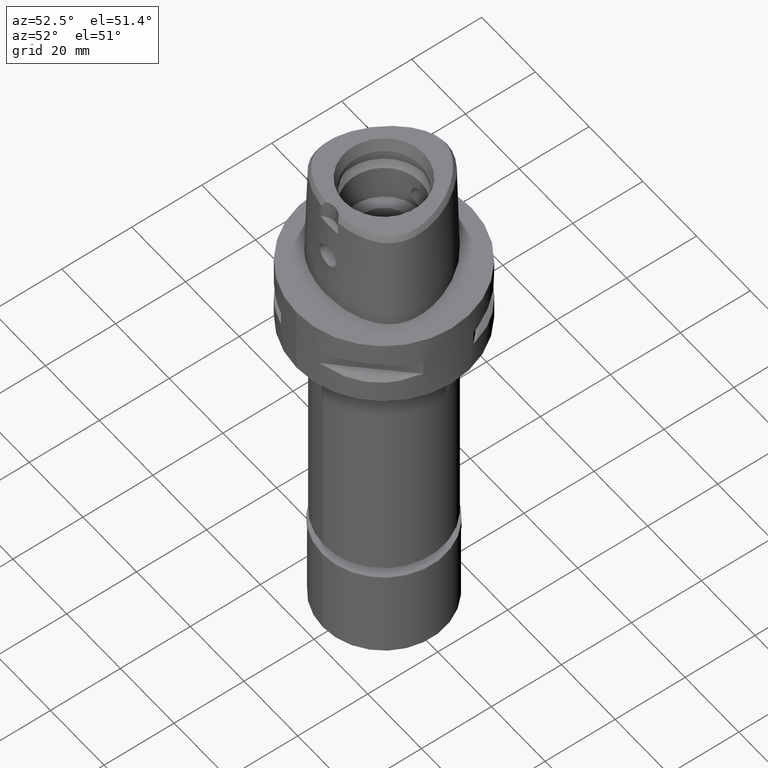
[diagram: clean part render]
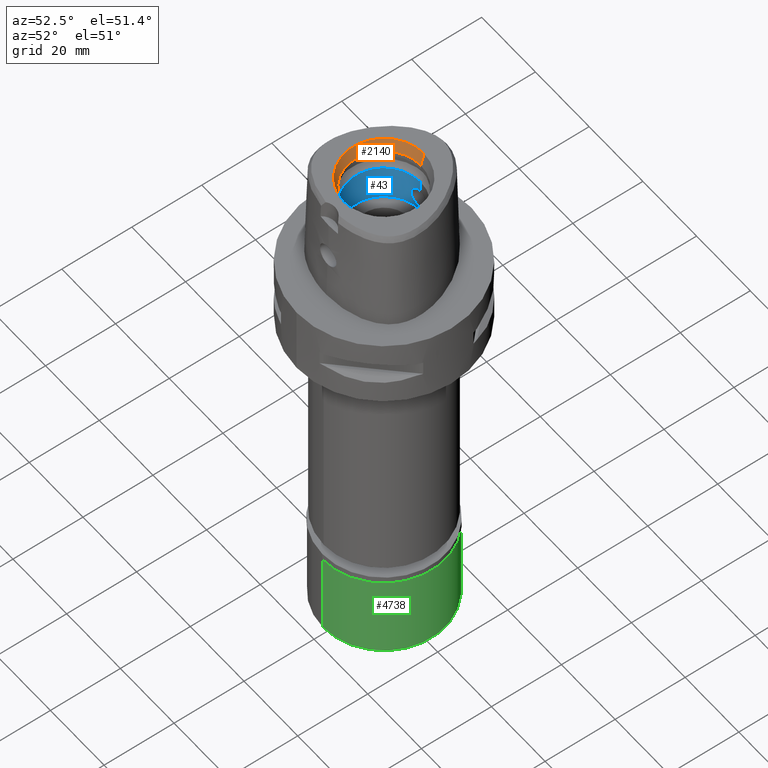
[diagram: same view with three faces highlighted in distinct colors, each labeled with its STEP entity id]
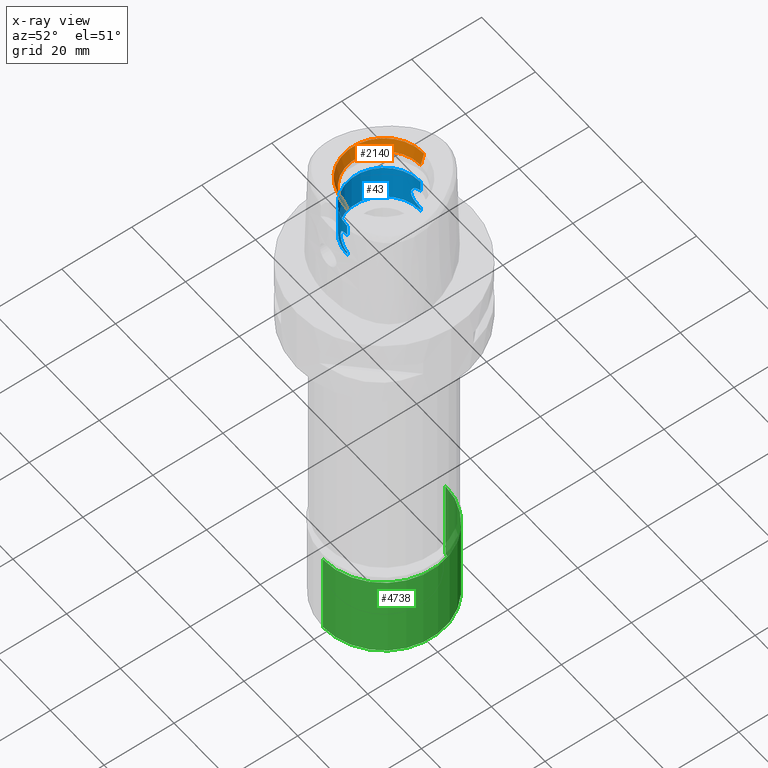
[diagram: x-ray of the same camera — body ghosted, the three highlighted faces saturated]
A machine part, auxiliary view with three faces highlighted in distinct colors.
The next image is the same camera in x-ray (body ghosted, the three faces saturated) — at least one of them is partly hidden behind the body in this view.
Their STEP definitions:

[orange] entity #2140 — the highlighted conical surface has half-angle 15 deg.
#77 = ORIENTED_EDGE ( 'NONE', *, *, #3396, .F. ) ;
#638 = EDGE_CURVE ( 'NONE', #1384, #2234, #2397, .T. ) ;
#1030 = VERTEX_POINT ( 'NONE', #1131 ) ;
#1089 = DIRECTION ( 'NONE',  ( 0.0000000000000000000, 1.000000000000000000, 0.0000000000000000000 ) ) ;
#1131 = CARTESIAN_POINT ( 'NONE',  ( 0.0000000000000000000, -10.50000000000000000, 26.50000000000000000 ) ) ;
#1154 = VECTOR ( 'NONE', #4639, 1000.000000000000114 ) ;
#1163 = CARTESIAN_POINT ( 'NONE',  ( 0.0000000000000000000, 11.43782217350000074, 30.00000000000000000 ) ) ;
#1277 = ORIENTED_EDGE ( 'NONE', *, *, #2511, .T. ) ;
#1384 = VERTEX_POINT ( 'NONE', #1163 ) ;
#1432 = CIRCLE ( 'NONE', #2379, 10.50000000000000000 ) ;
#1469 = CARTESIAN_POINT ( 'NONE',  ( 0.0000000000000000000, -10.50000000000000000, 26.50000000000000000 ) ) ;
#1679 = CARTESIAN_POINT ( 'NONE',  ( 0.0000000000000000000, -11.43782217350000074, 30.00000000000000000 ) ) ;
#1831 = CARTESIAN_POINT ( 'NONE',  ( 0.0000000000000000000, 1.570609519905999910E-14, 30.00000000000000000 ) ) ;
#1838 = VECTOR ( 'NONE', #2600, 1000.000000000000114 ) ;
#2030 = FACE_OUTER_BOUND ( 'NONE', #2195, .T. ) ;
#2117 = DIRECTION ( 'NONE',  ( 0.0000000000000000000, 1.000000000000000000, 0.0000000000000000000 ) ) ;
#2140 = ADVANCED_FACE ( 'NONE', ( #2030 ), #2976, .F. ) ;
#2195 = EDGE_LOOP ( 'NONE', ( #2960, #77, #1277, #2817 ) ) ;
#2222 = LINE ( 'NONE', #1469, #1838 ) ;
#2234 = VERTEX_POINT ( 'NONE', #1679 ) ;
#2379 = AXIS2_PLACEMENT_3D ( 'NONE', #4552, #2769, #3084 ) ;
#2397 = CIRCLE ( 'NONE', #3349, 11.43782217350000074 ) ;
#2511 = EDGE_CURVE ( 'NONE', #4541, #1384, #4666, .T. ) ;
#2600 = DIRECTION ( 'NONE',  ( 0.0000000000000000000, -0.2588190451023999472, 0.9659258262891006197 ) ) ;
#2769 = DIRECTION ( 'NONE',  ( 0.0000000000000000000, 0.0000000000000000000, 1.000000000000000000 ) ) ;
#2817 = ORIENTED_EDGE ( 'NONE', *, *, #638, .T. ) ;
#2960 = ORIENTED_EDGE ( 'NONE', *, *, #3667, .F. ) ;
#2976 = CONICAL_SURFACE ( 'NONE', #4289, 10.96891108674999948, 0.2617993877991000029 ) ;
#3084 = DIRECTION ( 'NONE',  ( 0.0000000000000000000, 1.000000000000000000, 0.0000000000000000000 ) ) ;
#3290 = CARTESIAN_POINT ( 'NONE',  ( 0.0000000000000000000, 10.50000000000000000, 26.50000000000000000 ) ) ;
#3349 = AXIS2_PLACEMENT_3D ( 'NONE', #1831, #4783, #1089 ) ;
#3396 = EDGE_CURVE ( 'NONE', #4541, #1030, #1432, .T. ) ;
#3667 = EDGE_CURVE ( 'NONE', #1030, #2234, #2222, .T. ) ;
#3887 = CARTESIAN_POINT ( 'NONE',  ( 0.0000000000000000000, 10.50000000000000000, 26.50000000000000000 ) ) ;
#4289 = AXIS2_PLACEMENT_3D ( 'NONE', #4654, #4359, #2117 ) ;
#4359 = DIRECTION ( 'NONE',  ( 0.0000000000000000000, 0.0000000000000000000, 1.000000000000000000 ) ) ;
#4541 = VERTEX_POINT ( 'NONE', #3290 ) ;
#4552 = CARTESIAN_POINT ( 'NONE',  ( 0.0000000000000000000, 1.570609519905999910E-14, 26.50000000000000000 ) ) ;
#4639 = DIRECTION ( 'NONE',  ( 0.0000000000000000000, 0.2588190451023999472, 0.9659258262891006197 ) ) ;
#4654 = CARTESIAN_POINT ( 'NONE',  ( 0.0000000000000000000, 1.570609519905999910E-14, 28.25000000000000000 ) ) ;
#4666 = LINE ( 'NONE', #3887, #1154 ) ;
#4783 = DIRECTION ( 'NONE',  ( 0.0000000000000000000, 0.0000000000000000000, 1.000000000000000000 ) ) ;

[blue] entity #43 — the highlighted cylindrical surface (partial cylindrical patch) has radius 10.5 mm, axis along (0, 0, -1).
#1 = CARTESIAN_POINT ( 'NONE',  ( -1.236970991457524205, -10.42717214455168673, 11.21059854084800378 ) ) ;
#7 = CARTESIAN_POINT ( 'NONE',  ( -1.989380834266105236, -10.31000558558483782, 16.31412456803518651 ) ) ;
#10 = CARTESIAN_POINT ( 'NONE',  ( -2.422120140329977023, 10.21699611243725059, 15.85428600920510789 ) ) ;
#35 = CARTESIAN_POINT ( 'NONE',  ( -2.810150766206493955, 10.11706327608431444, 15.18561677981521463 ) ) ;
#43 = ADVANCED_FACE ( 'NONE', ( #150 ), #1254, .F. ) ;
#52 = EDGE_LOOP ( 'NONE', ( #1263, #3153, #2940, #4740, #84, #4463, #1803, #2835 ) ) ;
#60 = CARTESIAN_POINT ( 'NONE',  ( -2.978127891128233173, 10.06912725568705191, 13.33449090258048031 ) ) ;
#64 = VECTOR ( 'NONE', #2957, 1000.000000000000000 ) ;
#75 = CARTESIAN_POINT ( 'NONE',  ( -2.069542859304600579, -10.29403964594939325, 11.75921177303411191 ) ) ;
#83 = CARTESIAN_POINT ( 'NONE',  ( -1.707640360675909186, 10.36022131060034823, 11.47285354451636330 ) ) ;
#84 = ORIENTED_EDGE ( 'NONE', *, *, #442, .T. ) ;
#98 = CARTESIAN_POINT ( 'NONE',  ( -0.7659688420383309326, -10.47222443652091428, 11.04602031585923783 ) ) ;
#106 = CARTESIAN_POINT ( 'NONE',  ( -2.528954909622000979, 10.19087722666582430, 15.70496063387551189 ) ) ;
#129 = CARTESIAN_POINT ( 'NONE',  ( -1.210517423897341072, 10.42987825673995594, 11.20048454624511791 ) ) ;
#150 = FACE_OUTER_BOUND ( 'NONE', #52, .T. ) ;
#160 = CARTESIAN_POINT ( 'NONE',  ( -2.500941927104697537, -10.19782552341570536, 12.25405656687691369 ) ) ;
#162 = CARTESIAN_POINT ( 'NONE',  ( 0.0000000000000000000, -10.50000000000000000, 17.05000000000000071 ) ) ;
#182 = CARTESIAN_POINT ( 'NONE',  ( -2.888905041932110951, -10.09491623349292588, 14.98047557974274646 ) ) ;
#201 = CARTESIAN_POINT ( 'NONE',  ( -1.386859004519744420, 10.40801138036379214, 11.28306995356800080 ) ) ;
#205 = CARTESIAN_POINT ( 'NONE',  ( -2.683279171142028741, -10.15143556569935868, 15.45085199004000032 ) ) ;
#241 = DIRECTION ( 'NONE',  ( 0.0000000000000000000, 0.0000000000000000000, 1.000000000000000000 ) ) ;
#261 = LINE ( 'NONE', #753, #1849 ) ;
#324 = CARTESIAN_POINT ( 'NONE',  ( -2.599211988427735154, -10.17322507370061224, 15.59619274367446629 ) ) ;
#327 = CARTESIAN_POINT ( 'NONE',  ( -1.669323678374943221, 10.36644748067065613, 16.55262679574853735 ) ) ;
#375 = CARTESIAN_POINT ( 'NONE',  ( -2.829287990917263684, 10.11169813602231571, 12.86080909624539892 ) ) ;
#389 = CARTESIAN_POINT ( 'NONE',  ( -1.141745633105092805, -10.43768060441339074, 11.17174126026638348 ) ) ;
#397 = CARTESIAN_POINT ( 'NONE',  ( -2.683191945264891576, 10.15145846410230668, 12.54898677824548869 ) ) ;
#421 = CARTESIAN_POINT ( 'NONE',  ( -2.517823525413681818, 10.19364202501179406, 15.72138897898658172 ) ) ;
#439 = CARTESIAN_POINT ( 'NONE',  ( -1.716756171786230301, 10.35871365131697175, 11.47903138842630177 ) ) ;
#442 = EDGE_CURVE ( 'NONE', #4724, #4509, #261, .T. ) ;
#460 = CARTESIAN_POINT ( 'NONE',  ( -2.078038709624342228, 10.29276064310931460, 11.76344414177673059 ) ) ;
#510 = CARTESIAN_POINT ( 'NONE',  ( -2.912216450231191800, -10.08825166008217522, 14.90777119494854830 ) ) ;
#519 = AXIS2_PLACEMENT_3D ( 'NONE', #2495, #1331, #574 ) ;
#532 = CARTESIAN_POINT ( 'NONE',  ( -2.772332365879737637, -10.12749896522380233, 12.72828723214494673 ) ) ;
#541 = DIRECTION ( 'NONE',  ( 0.0000000000000000000, 0.0000000000000000000, -1.000000000000000000 ) ) ;
#571 = CARTESIAN_POINT ( 'NONE',  ( -3.045674708761643590, -10.04867492672408424, 13.81104911491829057 ) ) ;
#574 = DIRECTION ( 'NONE',  ( 0.0000000000000000000, 1.000000000000000000, 0.0000000000000000000 ) ) ;
#601 = CARTESIAN_POINT ( 'NONE',  ( -2.648789121796822243, -10.16057521332143132, 12.48453188296662120 ) ) ;
#624 = CARTESIAN_POINT ( 'NONE',  ( -1.707002147117131052, -10.36032702960450003, 16.52757898179819307 ) ) ;
#628 = CARTESIAN_POINT ( 'NONE',  ( -1.658066331311180752, 10.36825423575106697, 16.55995334772511285 ) ) ;
#632 = CARTESIAN_POINT ( 'NONE',  ( 0.0000000000000000000, -10.50000000000000000, 20.40000000000000213 ) ) ;
#653 = CARTESIAN_POINT ( 'NONE',  ( -2.556129876256765687, -10.18410642273496691, 15.66394454908769163 ) ) ;
#678 = VERTEX_POINT ( 'NONE', #1409 ) ;
#698 = CARTESIAN_POINT ( 'NONE',  ( -1.237023317697302893, 10.42716572946013365, 16.78937845560923847 ) ) ;
#717 = CARTESIAN_POINT ( 'NONE',  ( -1.716858718820745366, -10.35869680157686368, 16.52089877280510777 ) ) ;
#719 = CARTESIAN_POINT ( 'NONE',  ( -2.741746217139191089, 10.13583857502459118, 15.33702988438338899 ) ) ;
#726 = EDGE_CURVE ( 'NONE', #2739, #4696, #4091, .T. ) ;
#745 = CARTESIAN_POINT ( 'NONE',  ( -2.801053957048247334, 10.11958658533686872, 15.20695120327819794 ) ) ;
#753 = CARTESIAN_POINT ( 'NONE',  ( 0.0000000000000000000, 10.50000000000000000, 17.05000000000000071 ) ) ;
#759 = CARTESIAN_POINT ( 'NONE',  ( -2.103232246197917821, -10.28719004434036322, 11.79111788134575001 ) ) ;
#767 = CARTESIAN_POINT ( 'NONE',  ( -1.276168536539535436, -10.42207014440570134, 16.77028671480228894 ) ) ;
#769 = CARTESIAN_POINT ( 'NONE',  ( -2.619413570529740554, 10.16804486729831325, 12.43735944304080654 ) ) ;
#790 = CARTESIAN_POINT ( 'NONE',  ( -2.787138307697480055, 10.12343696887290534, 15.23908121230954826 ) ) ;
#804 = CARTESIAN_POINT ( 'NONE',  ( -2.328134646588185142, -10.23900167388969074, 12.02706842540317389 ) ) ;
#815 = CARTESIAN_POINT ( 'NONE',  ( -2.552337097881177908, 10.18505770120703069, 12.33024350685578518 ) ) ;
#866 = CARTESIAN_POINT ( 'NONE',  ( -3.049996994654183613, -10.04726781904927080, 13.90736337047195903 ) ) ;
#880 = CARTESIAN_POINT ( 'NONE',  ( 0.0000000000000000000, 1.610410540878999754E-14, 31.50000000000000000 ) ) ;
#913 = DIRECTION ( 'NONE',  ( 0.0000000000000000000, 0.0000000000000000000, 1.000000000000000000 ) ) ;
#941 = CARTESIAN_POINT ( 'NONE',  ( -2.810086769267829965, -10.11707961411530832, 12.81423157179656691 ) ) ;
#966 = CARTESIAN_POINT ( 'NONE',  ( -2.813881467533069447, -10.11602472213331083, 12.82324819156600704 ) ) ;
#976 = CARTESIAN_POINT ( 'NONE',  ( 0.0000000000000000000, 10.50000000000000000, 10.00000000000000000 ) ) ;
#1023 = CARTESIAN_POINT ( 'NONE',  ( -2.036676823283890769, 10.30054757855959124, 16.27052250341585093 ) ) ;
#1045 = CARTESIAN_POINT ( 'NONE',  ( -1.833447488656553714, -10.33866307199009782, 16.43778404703753893 ) ) ;
#1074 = VERTEX_POINT ( 'NONE', #976 ) ;
#1094 = CARTESIAN_POINT ( 'NONE',  ( -2.501000044834685632, 10.19781072506407860, 15.74586022058195312 ) ) ;
#1117 = CARTESIAN_POINT ( 'NONE',  ( -2.512897179944678427, 10.19492768217998702, 12.27023766549895711 ) ) ;
#1134 = VERTEX_POINT ( 'NONE', #632 ) ;
#1136 = CARTESIAN_POINT ( 'NONE',  ( -1.930402385869702142, -10.32098582606490567, 11.63809759456460746 ) ) ;
#1148 = CARTESIAN_POINT ( 'NONE',  ( -1.833357280887933038, 10.33867894477191207, 11.56214807801467970 ) ) ;
#1175 = CARTESIAN_POINT ( 'NONE',  ( -2.465923181850918411, 10.20663968159883872, 12.20230114967458768 ) ) ;
#1186 = CARTESIAN_POINT ( 'NONE',  ( -1.601761070455504754, -10.37713886433959409, 11.40421660821091443 ) ) ;
#1198 = CARTESIAN_POINT ( 'NONE',  ( -1.706897019231228940, 10.36034420873473572, 11.47235002355032130 ) ) ;
#1254 = CYLINDRICAL_SURFACE ( 'NONE', #1535, 10.50000000000000000 ) ;
#1262 = CARTESIAN_POINT ( 'NONE',  ( -0.3776785909090182858, 10.49999999999999822, 10.94999999999999574 ) ) ;
#1263 = ORIENTED_EDGE ( 'NONE', *, *, #726, .F. ) ;
#1265 = CARTESIAN_POINT ( 'NONE',  ( -3.013859951456447916, -10.05850435149370625, 13.52139601645549050 ) ) ;
#1273 = DIRECTION ( 'NONE',  ( 0.0000000000000000000, -1.000000000000000000, 0.0000000000000000000 ) ) ;
#1307 = CARTESIAN_POINT ( 'NONE',  ( -3.050006005871280568, -10.04725307632644160, 14.18497625325586853 ) ) ;
#1328 = CARTESIAN_POINT ( 'NONE',  ( -2.531041662093029831, -10.19035908716451289, 12.29813872439738276 ) ) ;
#1330 = CARTESIAN_POINT ( 'NONE',  ( -0.3776993709982979786, -10.49999999999999822, 17.05000000000000782 ) ) ;
#1331 = DIRECTION ( 'NONE',  ( 0.0000000000000000000, 0.0000000000000000000, 1.000000000000000000 ) ) ;
#1409 = CARTESIAN_POINT ( 'NONE',  ( 0.0000000000000000000, 10.50000000000000000, 10.94999999999999929 ) ) ;
#1414 = CARTESIAN_POINT ( 'NONE',  ( -0.6689107934252116472, 10.47883584479355079, 16.97737400654057893 ) ) ;
#1485 = CARTESIAN_POINT ( 'NONE',  ( -2.525695295402958784, 10.19168723253692654, 15.70979240700941659 ) ) ;
#1506 = CARTESIAN_POINT ( 'NONE',  ( -0.9113028681997671354, -10.46032062360130865, 11.08888712985337044 ) ) ;
#1518 = CARTESIAN_POINT ( 'NONE',  ( -3.050002052846877199, 10.04726871909183750, 14.18506909345110500 ) ) ;
#1535 = AXIS2_PLACEMENT_3D ( 'NONE', #880, #541, #1273 ) ;
#1547 = CARTESIAN_POINT ( 'NONE',  ( -1.756850490860262237, 10.35198562929669563, 11.50668532013514422 ) ) ;
#1549 = VECTOR ( 'NONE', #913, 1000.000000000000000 ) ;
#1569 = CARTESIAN_POINT ( 'NONE',  ( -2.136195157994225102, 10.28040959572392232, 16.17703531785338100 ) ) ;
#1581 = CARTESIAN_POINT ( 'NONE',  ( -1.128342439728265090, -10.43913762318012850, 11.16636101740150799 ) ) ;
#1618 = CARTESIAN_POINT ( 'NONE',  ( -0.7784241814980361607, 10.47826785458433463, 11.02113059028888564 ) ) ;
#1661 = CARTESIAN_POINT ( 'NONE',  ( -2.791222475552965765, -10.12233257933232267, 15.23274991804428602 ) ) ;
#1682 = CARTESIAN_POINT ( 'NONE',  ( -1.243160183415216835, 10.42607389149278596, 11.21467312141658290 ) ) ;
#1739 = CARTESIAN_POINT ( 'NONE',  ( -0.7659989675978837731, 10.47222204629153453, 16.95397203600435887 ) ) ;
#1790 = CARTESIAN_POINT ( 'NONE',  ( -2.549842365819951162, -10.18568222999469164, 15.67356148465405141 ) ) ;
#1803 = ORIENTED_EDGE ( 'NONE', *, *, #2361, .F. ) ;
#1835 = CARTESIAN_POINT ( 'NONE',  ( -1.781761475892812197, -10.34769707631349789, 16.47553655425186392 ) ) ;
#1849 = VECTOR ( 'NONE', #4527, 1000.000000000000000 ) ;
#1854 = CARTESIAN_POINT ( 'NONE',  ( -1.068259254729759800, -10.44548219013554835, 11.14299424170537733 ) ) ;
#1863 = CARTESIAN_POINT ( 'NONE',  ( -2.556028951625586298, 10.18413196819813038, 12.33590042182879642 ) ) ;
#1876 = CARTESIAN_POINT ( 'NONE',  ( -1.740939741834752086, -10.35483279276972013, 11.49463136724422618 ) ) ;
#1886 = CARTESIAN_POINT ( 'NONE',  ( -1.989289688611299844, 10.31002308296286252, 11.68579728191736855 ) ) ;
#1907 = EDGE_CURVE ( 'NONE', #4509, #1134, #4752, .T. ) ;
#1909 = CARTESIAN_POINT ( 'NONE',  ( -1.870563960293808448, 10.33200406414448480, 11.59042173983723956 ) ) ;
#1925 = CARTESIAN_POINT ( 'NONE',  ( -0.9838954188418811420, -10.45387272493651665, 11.11226100473636436 ) ) ;
#1935 = CARTESIAN_POINT ( 'NONE',  ( -1.711272570631292123, 10.35962130366715428, 11.47531170282788615 ) ) ;
#1953 = CARTESIAN_POINT ( 'NONE',  ( -2.249112612356995555, 10.25680835906363519, 16.06494413070904059 ) ) ;
#2014 = CARTESIAN_POINT ( 'NONE',  ( -2.858200367380014040, -10.10358921940111010, 15.06506172780569486 ) ) ;
#2053 = CARTESIAN_POINT ( 'NONE',  ( -2.844281746712773007, -10.10749856698939730, 15.10123969460156701 ) ) ;
#2069 = LINE ( 'NONE', #3258, #1549 ) ;
#2074 = CARTESIAN_POINT ( 'NONE',  ( -2.834833065711951594, -10.11014754396551041, 15.12533950841325314 ) ) ;
#2121 = CARTESIAN_POINT ( 'NONE',  ( 0.0000000000000000000, -10.50000000000000000, 10.00000000000000000 ) ) ;
#2125 = CARTESIAN_POINT ( 'NONE',  ( -1.612831500871170887, -10.37582109268237396, 16.59102261434397718 ) ) ;
#2177 = CARTESIAN_POINT ( 'NONE',  ( -0.1867757862000055669, 10.50000000000000533, 17.05000000000000782 ) ) ;
#2193 = CARTESIAN_POINT ( 'NONE',  ( -2.078136855549447048, -10.29274103710466193, 16.23646593800194182 ) ) ;
#2196 = CARTESIAN_POINT ( 'NONE',  ( -1.641184631415794959, 10.37094890798138991, 16.57086096831054789 ) ) ;
#2217 = CARTESIAN_POINT ( 'NONE',  ( -1.707744634386802352, -10.36020426482496681, 16.52707599233059454 ) ) ;
#2219 = CARTESIAN_POINT ( 'NONE',  ( -2.834754633639801291, 10.11016863897445361, 12.87446293426835098 ) ) ;
#2243 = CARTESIAN_POINT ( 'NONE',  ( -2.449306409652422190, 10.21045509453157507, 15.81797153792606103 ) ) ;
#2259 = CARTESIAN_POINT ( 'NONE',  ( -2.125842786936849027, -10.28255069855148740, 11.81286979336259080 ) ) ;
#2268 = CARTESIAN_POINT ( 'NONE',  ( -2.069611831539440949, 10.29402588461528723, 16.24072455590262010 ) ) ;
#2282 = CARTESIAN_POINT ( 'NONE',  ( -1.500984064071866353, -10.39222349244441368, 11.34439425099851206 ) ) ;
#2291 = CARTESIAN_POINT ( 'NONE',  ( -3.032696740391326085, 10.05288360631074340, 14.38066037611959480 ) ) ;
#2307 = CARTESIAN_POINT ( 'NONE',  ( -2.422064481194326824, -10.21700983600882751, 12.14564131527684232 ) ) ;
#2321 = CARTESIAN_POINT ( 'NONE',  ( -2.813946852114310282, 10.11600798700472836, 15.17659545472322513 ) ) ;
#2329 = CARTESIAN_POINT ( 'NONE',  ( 0.0000000000000000000, 1.610410540878999754E-14, 10.00000000000000000 ) ) ;
#2361 = EDGE_CURVE ( 'NONE', #3159, #1134, #2069, .T. ) ;
#2373 = CARTESIAN_POINT ( 'NONE',  ( -2.954923799424067798, -10.07594839927475228, 14.76232415749415061 ) ) ;
#2383 = AXIS2_PLACEMENT_3D ( 'NONE', #2329, #3059, #4134 ) ;
#2421 = CARTESIAN_POINT ( 'NONE',  ( -2.800990899469157469, -10.11960264487857053, 12.79290249058781015 ) ) ;
#2474 = CARTESIAN_POINT ( 'NONE',  ( -1.601830449822953861, 10.37712825378677728, 16.59574060478407631 ) ) ;
#2495 = CARTESIAN_POINT ( 'NONE',  ( 0.0000000000000000000, 1.483659597167000164E-14, 20.40000000000000213 ) ) ;
#2498 = CARTESIAN_POINT ( 'NONE',  ( -1.930470013878575086, 10.32097337782365720, 16.36184715303361870 ) ) ;
#2544 = CARTESIAN_POINT ( 'NONE',  ( -1.729897229202746800, -10.35652570010797824, 16.51199141017097460 ) ) ;
#2546 = CARTESIAN_POINT ( 'NONE',  ( -1.141792211098828558, 10.43767525999571433, 16.82823993922313832 ) ) ;
#2573 = CARTESIAN_POINT ( 'NONE',  ( -0.3787264937952279920, 10.49470896119838592, 17.03279685116468656 ) ) ;
#2593 = CARTESIAN_POINT ( 'NONE',  ( -2.552438509331959260, -10.18503206892929391, 15.66960146825831579 ) ) ;
#2595 = CARTESIAN_POINT ( 'NONE',  ( -3.049997946777922575, 10.04725708844817333, 13.81486324953852041 ) ) ;
#2622 = CARTESIAN_POINT ( 'NONE',  ( -2.342882850095089786, 10.23560712946009232, 12.04464881773595941 ) ) ;
#2644 = CARTESIAN_POINT ( 'NONE',  ( -1.971929262909972724, -10.31316602881087086, 11.67249179958506389 ) ) ;
#2652 = CARTESIAN_POINT ( 'NONE',  ( -2.648844644341100896, 10.16056081194418503, 15.51537173427742644 ) ) ;
#2669 = CARTESIAN_POINT ( 'NONE',  ( -1.104322948832158202, -10.44170024957254306, 11.15691411144925560 ) ) ;
#2678 = CARTESIAN_POINT ( 'NONE',  ( -2.125912643791404655, 10.28253628167046507, 16.18706231037647569 ) ) ;
#2693 = CARTESIAN_POINT ( 'NONE',  ( -2.249050916138876755, -10.25682216957387638, 11.93498815947745939 ) ) ;
#2695 = CARTESIAN_POINT ( 'NONE',  ( 0.0000000000000000000, -10.50000000000000000, 10.00000000000000000 ) ) ;
#2705 = CARTESIAN_POINT ( 'NONE',  ( -2.266031942072059824, 10.25301885860398698, 11.95414413431464773 ) ) ;
#2739 = VERTEX_POINT ( 'NONE', #2695 ) ;
#2744 = CARTESIAN_POINT ( 'NONE',  ( -1.210594281083170909, -10.42986908659943346, 16.79948222309360162 ) ) ;
#2763 = CARTESIAN_POINT ( 'NONE',  ( -2.787076618230111880, -10.12345263663456052, 12.76078019898827698 ) ) ;
#2823 = CARTESIAN_POINT ( 'NONE',  ( -1.276087466830978956, 10.42208029483865772, 11.22967595726585266 ) ) ;
#2826 = CARTESIAN_POINT ( 'NONE',  ( -2.528894004391024186, -10.19089284583922073, 12.29494902973502235 ) ) ;
#2835 = ORIENTED_EDGE ( 'NONE', *, *, #3040, .F. ) ;
#2854 = CARTESIAN_POINT ( 'NONE',  ( -2.594811399191726764, -10.17450681222491049, 12.39322990856825868 ) ) ;
#2912 = CARTESIAN_POINT ( 'NONE',  ( -1.342364904572726392, -10.41382963364429060, 16.73914857691683977 ) ) ;
#2929 = CARTESIAN_POINT ( 'NONE',  ( 0.0000000000000000000, -10.50000000000000000, 10.94999999999999929 ) ) ;
#2940 = ORIENTED_EDGE ( 'NONE', *, *, #3479, .T. ) ;
#2941 = CARTESIAN_POINT ( 'NONE',  ( -1.068302726652214263, 10.44547749859901309, 16.85698952386767502 ) ) ;
#2948 = CARTESIAN_POINT ( 'NONE',  ( 0.0000000000000000000, -10.50000000000000000, 10.94999999999999929 ) ) ;
#2957 = DIRECTION ( 'NONE',  ( 0.0000000000000000000, 0.0000000000000000000, 1.000000000000000000 ) ) ;
#2982 = CARTESIAN_POINT ( 'NONE',  ( -2.574365583813414293, -10.17951923599857089, 15.63568231492182647 ) ) ;
#2984 = CARTESIAN_POINT ( 'NONE',  ( -2.531102836408900103, 10.19034339215896168, 15.70177029280958614 ) ) ;
#3003 = CARTESIAN_POINT ( 'NONE',  ( -2.899496666176276438, 10.09216377823652167, 14.96948400516765076 ) ) ;
#3031 = CARTESIAN_POINT ( 'NONE',  ( -3.033102383073896569, 10.05272244951220273, 13.62399160588141100 ) ) ;
#3040 = EDGE_CURVE ( 'NONE', #4696, #3159, #4297, .T. ) ;
#3047 = CARTESIAN_POINT ( 'NONE',  ( -0.6688848580203151650, -10.47883766592069676, 11.02262030736439513 ) ) ;
#3053 = CARTESIAN_POINT ( 'NONE',  ( -2.328192064093268954, 10.23898821852027652, 15.97286391451534548 ) ) ;
#3059 = DIRECTION ( 'NONE',  ( 0.0000000000000000000, 0.0000000000000000000, -1.000000000000000000 ) ) ;
#3066 = CARTESIAN_POINT ( 'NONE',  ( -1.669251865941063340, -10.36645889114649677, 11.44732624395232712 ) ) ;
#3073 = CARTESIAN_POINT ( 'NONE',  ( -2.594867977600434639, 10.17449200217675376, 15.60667852669412170 ) ) ;
#3121 = CARTESIAN_POINT ( 'NONE',  ( -2.517763885752869246, -10.19365728118864745, 12.27852380166261703 ) ) ;
#3140 = CARTESIAN_POINT ( 'NONE',  ( -2.741687925847800855, -10.13585340484663710, 12.66285088319215113 ) ) ;
#3142 = CARTESIAN_POINT ( 'NONE',  ( -1.179453040604665492, -10.43343659253780586, 16.81275016808202594 ) ) ;
#3153 = ORIENTED_EDGE ( 'NONE', *, *, #3894, .T. ) ;
#3159 = VERTEX_POINT ( 'NONE', #3885 ) ;
#3163 = CARTESIAN_POINT ( 'NONE',  ( -2.484615155407557285, -10.20184257487172630, 12.23093440950286492 ) ) ;
#3174 = VECTOR ( 'NONE', #241, 1000.000000000000000 ) ;
#3189 = CARTESIAN_POINT ( 'NONE',  ( -1.521583308926622635, 10.38951390832133370, 11.35469636213800193 ) ) ;
#3192 = CARTESIAN_POINT ( 'NONE',  ( -2.719716883149772890, -10.14177207452098806, 12.61862498506612695 ) ) ;
#3215 = CARTESIAN_POINT ( 'NONE',  ( -0.7784722812098756606, -10.47826500980826125, 16.97886144983464973 ) ) ;
#3241 = CARTESIAN_POINT ( 'NONE',  ( -1.568181816412384411, 10.38223931122219490, 16.61610008022359963 ) ) ;
#3257 = CARTESIAN_POINT ( 'NONE',  ( 0.0000000000000000000, 10.50000000000000000, 10.00000000000000000 ) ) ;
#3258 = CARTESIAN_POINT ( 'NONE',  ( 0.0000000000000000000, -10.50000000000000000, 17.05000000000000071 ) ) ;
#3266 = CARTESIAN_POINT ( 'NONE',  ( -1.521679074918116603, -10.38949990591960670, 16.64524884871136479 ) ) ;
#3271 = CARTESIAN_POINT ( 'NONE',  ( -1.128388588165296635, 10.43913238566114288, 16.83362060905057334 ) ) ;
#3294 = CARTESIAN_POINT ( 'NONE',  ( -2.266150310915595156, -10.25299273076200990, 16.04572614261367391 ) ) ;
#3343 = CARTESIAN_POINT ( 'NONE',  ( -1.676808555293912484, 10.36523801010305945, 16.54771143357410423 ) ) ;
#3366 = CARTESIAN_POINT ( 'NONE',  ( -2.549740208879109904, 10.18570802368205896, 12.32628287991787630 ) ) ;
#3376 = CARTESIAN_POINT ( 'NONE',  ( -1.811855294756858692, -10.34269454463855986, 11.54442964516321446 ) ) ;
#3389 = CARTESIAN_POINT ( 'NONE',  ( -2.574267007192601042, 10.17954435807561886, 12.36416254159420092 ) ) ;
#3411 = CARTESIAN_POINT ( 'NONE',  ( -1.243239160194685278, -10.42606423733849574, 16.78529165536830448 ) ) ;
#3413 = CARTESIAN_POINT ( 'NONE',  ( -1.781667587359011984, 10.34771309606337830, 11.52439586436312524 ) ) ;
#3430 = CARTESIAN_POINT ( 'NONE',  ( -1.657994911998537546, -10.36826551228219628, 11.44000039676776126 ) ) ;
#3440 = CARTESIAN_POINT ( 'NONE',  ( -2.561545268882480464, 10.18274734174174156, 12.34438370240409455 ) ) ;
#3462 = CARTESIAN_POINT ( 'NONE',  ( -2.484672345235774404, 10.20182809385606859, 15.76898528458802318 ) ) ;
#3479 = EDGE_CURVE ( 'NONE', #1074, #678, #3947, .T. ) ;
#3538 = CARTESIAN_POINT ( 'NONE',  ( -1.342279693348836789, 10.41384079298781629, 11.26080973208517300 ) ) ;
#3562 = CARTESIAN_POINT ( 'NONE',  ( -2.829367966013600189, -10.11167664625314799, 15.13899227454180973 ) ) ;
#3584 = CARTESIAN_POINT ( 'NONE',  ( -2.658804322946592968, -10.15786626566926643, 15.49530980981890949 ) ) ;
#3635 = CARTESIAN_POINT ( 'NONE',  ( -1.711376145593774600, -10.35960433765622035, 16.52461808905488994 ) ) ;
#3638 = CARTESIAN_POINT ( 'NONE',  ( -1.811923128018510187, 10.34268288509988487, 16.45552038746596324 ) ) ;
#3707 = CARTESIAN_POINT ( 'NONE',  ( -1.741008943108351525, 10.35482134675018351, 16.50532047990252948 ) ) ;
#3722 = CARTESIAN_POINT ( 'NONE',  ( -0.3787126761314228984, -10.49470941648017330, 10.96720197530919272 ) ) ;
#3731 = CARTESIAN_POINT ( 'NONE',  ( -2.512991079125337368, -10.19490431600040559, 15.72962668998657421 ) ) ;
#3733 = CARTESIAN_POINT ( 'NONE',  ( -2.772392834499847858, 10.12748361138053532, 15.27158101548691782 ) ) ;
#3750 = CARTESIAN_POINT ( 'NONE',  ( -1.676736169709693414, -10.36524956105877493, 11.45224092616220801 ) ) ;
#3760 = CARTESIAN_POINT ( 'NONE',  ( -2.957458809612652839, 10.07533110055039138, 14.77174427796530587 ) ) ;
#3788 = CARTESIAN_POINT ( 'NONE',  ( -2.658715008035324789, 10.15788960486391801, 12.50453139084627985 ) ) ;
#3809 = CARTESIAN_POINT ( 'NONE',  ( -2.912153889445283639, 10.08826910388529718, 13.09202804398410436 ) ) ;
#3826 = CARTESIAN_POINT ( 'NONE',  ( -2.449250553890446991, -10.21046904098944808, 12.18195328439697711 ) ) ;
#3835 = CARTESIAN_POINT ( 'NONE',  ( -2.844204983774000883, 10.10751926482777741, 12.89856206277735851 ) ) ;
#3883 = CARTESIAN_POINT ( 'NONE',  ( -3.027606630965149481, -10.05429316240128657, 13.61864064624119308 ) ) ;
#3885 = CARTESIAN_POINT ( 'NONE',  ( 0.0000000000000000000, -10.50000000000000000, 17.05000000000000071 ) ) ;
#3894 = EDGE_CURVE ( 'NONE', #2739, #1074, #4503, .T. ) ;
#3929 = CARTESIAN_POINT ( 'NONE',  ( -1.179378217722859556, 10.43344530466452014, 11.18721846284179477 ) ) ;
#3931 = CARTESIAN_POINT ( 'NONE',  ( -2.978171504032511852, -10.06911407342189513, 14.66531292184384228 ) ) ;
#3947 = LINE ( 'NONE', #3257, #3174 ) ;
#3954 = CARTESIAN_POINT ( 'NONE',  ( -2.899438252675091920, -10.09217893824013856, 13.03034376943105954 ) ) ;
#3979 = CARTESIAN_POINT ( 'NONE',  ( 0.0000000000000000000, 10.50000000000000000, 20.40000000000000213 ) ) ;
#3983 = CARTESIAN_POINT ( 'NONE',  ( -3.033123847728290912, -10.05271463991960168, 14.37582827189630308 ) ) ;
#3989 = CARTESIAN_POINT ( 'NONE',  ( -1.971997125763412795, 10.31315323959810648, 16.32745075566788273 ) ) ;
#4009 = CARTESIAN_POINT ( 'NONE',  ( -2.561645471685185527, -10.18272192546624666, 15.65546125323314897 ) ) ;
#4057 = CARTESIAN_POINT ( 'NONE',  ( -2.342973749380831805, -10.23558612908865761, 15.95524252938907850 ) ) ;
#4060 = CARTESIAN_POINT ( 'NONE',  ( -1.501049374956629157, 10.39221405984838320, 16.65556889013103259 ) ) ;
#4064 = B_SPLINE_CURVE_WITH_KNOTS ( 'NONE', 3,
 ( #4787, #2177, #2573, #1414, #1739, #4082, #4806, #2941, #4412, #3271, #2546, #698, #4765, #4370, #4060, #3241, #2474, #2196, #628, #327, #3343, #3707, #3638, #2498, #3989, #1023, #2268, #4149, #2678, #1569, #1953, #3053, #10, #2243, #3462, #1094, #421, #1485, #106, #2984, #4173, #3073, #2652, #4464, #719, #3733, #790, #745, #35, #2321, #3003, #3760, #2291, #1518, #2595, #3031, #60, #4097, #3809, #4561, #4124, #3835, #2219, #375, #4518, #4196, #397, #3788, #769, #4488, #3389, #3440, #1863, #815, #3366, #1117, #1175, #2622, #2705, #460, #1886, #1909, #1148, #3413, #1547, #4542, #439, #1935, #83, #1198, #4269, #3189, #201, #3538, #2823, #1682, #129, #4632, #3929, #1618, #1262, #4313 ),
 .UNSPECIFIED., .F., .F.,
 ( 4, 2, 2, 1, 1, 2, 2, 2, 2, 1, 1, 2, 2, 2, 2, 1, 2, 2, 2, 2, 1, 1, 1, 2, 2, 2, 2, 1, 2, 2, 2, 2, 2, 2, 1, 1, 2, 2, 2, 2, 1, 1, 1, 2, 2, 2, 2, 2, 2, 1, 1, 1, 2, 2, 2, 2, 1, 2, 2, 4 ),
 ( 0.0000000000000000000, 0.06250000000005000167, 0.09375000000007498169, 0.1093750000000874578, 0.1171875000000938416, 0.1210937500000970335, 0.1250000000001002254, 0.1562500000001287581, 0.1718750000001432188, 0.1796875000001501854, 0.1835937500001536826, 0.1855468750001554312, 0.1875000000001572076, 0.2187500000001907918, 0.2343750000002075562, 0.2421875000002156608, 0.2460937500002194078, 0.2500000000002231548, 0.2812500000002552958, 0.2968750000002718381, 0.3046875000002801093, 0.3085937500002842171, 0.3105468750002856049, 0.3115234375002855494, 0.3125000000002854939, 0.3437500000002703948, 0.3593750000002626233, 0.3671875000002587375, 0.3710937500002564615, 0.3750000000002541856, 0.4375000000002147726, 0.5000000000001753042, 0.5625000000001357803, 0.5937500000001159073, 0.6093750000001060263, 0.6171875000001009193, 0.6210937500000984768, 0.6250000000000959233, 0.6562500000000749401, 0.6718750000000645040, 0.6796875000000595080, 0.6835937500000571765, 0.6855468750000560663, 0.6865234375000555112, 0.6875000000000549560, 0.7187500000000541789, 0.7500000000000534017, 0.7812500000000527356, 0.7968750000000522915, 0.8046875000000520695, 0.8085937500000518474, 0.8105468750000518474, 0.8115234375000516254, 0.8125000000000514033, 0.8437500000000435207, 0.8593750000000395239, 0.8671875000000374145, 0.8710937500000363043, 0.8750000000000351941, 1.000000000000000000 ),
 .UNSPECIFIED. ) ;
#4078 = CARTESIAN_POINT ( 'NONE',  ( -2.619506896400563445, -10.16802073453787081, 15.56248410663114967 ) ) ;
#4082 = CARTESIAN_POINT ( 'NONE',  ( -0.9113393729746070981, 10.46031720898791129, 16.91110148384257528 ) ) ;
#4091 = LINE ( 'NONE', #2121, #64 ) ;
#4094 = CARTESIAN_POINT ( 'NONE',  ( -1.870653332851430983, -10.33198800126837114, 16.40950892576146813 ) ) ;
#4097 = CARTESIAN_POINT ( 'NONE',  ( -2.954872475493828254, 10.07596331850846560, 13.23747652596168933 ) ) ;
#4124 = CARTESIAN_POINT ( 'NONE',  ( -2.858126141420012978, 10.10360931895604253, 12.93473909768341379 ) ) ;
#4134 = DIRECTION ( 'NONE',  ( 0.0000000000000000000, -1.000000000000000000, 0.0000000000000000000 ) ) ;
#4139 = CARTESIAN_POINT ( 'NONE',  ( -2.036608275854738359, -10.30056099633559086, 11.72941602424622154 ) ) ;
#4149 = CARTESIAN_POINT ( 'NONE',  ( -2.103301738621035533, 10.28717589553340162, 16.20881595313307955 ) ) ;
#4160 = CARTESIAN_POINT ( 'NONE',  ( 0.0000000000000000000, 10.50000000000000000, 17.05000000000000071 ) ) ;
#4163 = CARTESIAN_POINT ( 'NONE',  ( -1.456451784278373962, -10.39854298868677418, 11.31975134942135952 ) ) ;
#4173 = CARTESIAN_POINT ( 'NONE',  ( -2.531286416516624449, 10.19029777456246855, 15.70149964620172156 ) ) ;
#4188 = CARTESIAN_POINT ( 'NONE',  ( -1.641113809038855509, -10.37095998395789387, 11.42909382803142826 ) ) ;
#4196 = CARTESIAN_POINT ( 'NONE',  ( -2.751811409379779416, 10.13318214440143450, 12.68095962663364951 ) ) ;
#4205 = EDGE_CURVE ( 'NONE', #4724, #678, #4064, .T. ) ;
#4230 = CARTESIAN_POINT ( 'NONE',  ( -1.188897515433126051, -10.43236359862408591, 16.80876519641732969 ) ) ;
#4249 = CARTESIAN_POINT ( 'NONE',  ( -2.957412640812164373, -10.07534413253240935, 13.22807721098846656 ) ) ;
#4269 = CARTESIAN_POINT ( 'NONE',  ( -1.612730834933888246, 10.37583661473249741, 11.40891507944480310 ) ) ;
#4297 = B_SPLINE_CURVE_WITH_KNOTS ( 'NONE', 3,
 ( #2929, #4402, #3722, #3047, #98, #1506, #1925, #1854, #2669, #1581, #389, #1, #4505, #4163, #2282, #4473, #1186, #4188, #3430, #3066, #3750, #1876, #3376, #1136, #2644, #4139, #75, #759, #2259, #4555, #2693, #804, #2307, #3826, #3163, #160, #3121, #4614, #2826, #1328, #4635, #2854, #601, #3192, #3140, #532, #2763, #2421, #941, #966, #3954, #4249, #1265, #3883, #571, #866, #1307, #3983, #3931, #2373, #510, #182, #2014, #2053, #2074, #3562, #1661, #4660, #205, #3584, #4078, #324, #2982, #4009, #653, #2593, #1790, #3731, #4484, #4057, #3294, #2193, #7, #4094, #1045, #1835, #4830, #2544, #717, #3635, #2217, #624, #2125, #3266, #4761, #2912, #767, #3411, #2744, #4230, #3142, #3215, #1330, #162 ),
 .UNSPECIFIED., .F., .F.,
 ( 4, 2, 2, 1, 1, 2, 2, 2, 2, 1, 1, 2, 2, 2, 2, 1, 2, 2, 2, 2, 1, 1, 1, 2, 2, 2, 2, 1, 2, 2, 2, 2, 2, 2, 2, 1, 1, 2, 2, 2, 2, 1, 1, 1, 2, 2, 2, 2, 2, 2, 1, 1, 1, 2, 2, 2, 2, 1, 2, 2, 4 ),
 ( 0.0000000000000000000, 0.06249999999995925481, 0.09374999999993893773, 0.1093749999999288625, 0.1171874999999238109, 0.1210937499999213407, 0.1249999999999188705, 0.1562499999998988864, 0.1718749999998888944, 0.1796874999998839262, 0.1835937499998815947, 0.1855468749998802902, 0.1874999999998789857, 0.2187499999998562539, 0.2343749999998448741, 0.2421874999998391564, 0.2460937499998361311, 0.2499999999998331057, 0.2812499999998086531, 0.2968749999997966627, 0.3046874999997909450, 0.3085937499997884470, 0.3105468749997875588, 0.3115234374997875033, 0.3124999999997875033, 0.3437499999997895572, 0.3593749999997902234, 0.3671874999997906119, 0.3710937499997908340, 0.3749999999997910560, 0.4374999999998008260, 0.4687499999998054334, 0.4999999999998100408, 0.5624999999998193667, 0.5937499999998239186, 0.6093749999998263611, 0.6171874999998272493, 0.6210937499998276934, 0.6249999999998281375, 0.6562499999998323563, 0.6718749999998345768, 0.6796874999998356870, 0.6835937499998364641, 0.6855468749998366862, 0.6865234374998369082, 0.6874999999998370193, 0.7187499999998649969, 0.7499999999998930855, 0.7812499999999210631, 0.7968749999999351630, 0.8046874999999421574, 0.8085937499999455991, 0.8105468749999469313, 0.8115234374999472644, 0.8124999999999474865, 0.8437499999999564793, 0.8593749999999610312, 0.8671874999999632516, 0.8710937499999644729, 0.8749999999999656941, 1.000000000000000000 ),
 .UNSPECIFIED. ) ;
#4313 = CARTESIAN_POINT ( 'NONE',  ( 0.0000000000000000000, 10.50000000000000000, 10.94999999999999929 ) ) ;
#4370 = CARTESIAN_POINT ( 'NONE',  ( -1.456515121685593384, 10.39853407060630985, 16.68021428700242481 ) ) ;
#4402 = CARTESIAN_POINT ( 'NONE',  ( -0.1867694243470509330, -10.49999999999999822, 10.94999999999999751 ) ) ;
#4412 = CARTESIAN_POINT ( 'NONE',  ( -1.104368027271932506, 10.44169523258067223, 16.84306838156898323 ) ) ;
#4463 = ORIENTED_EDGE ( 'NONE', *, *, #1907, .T. ) ;
#4464 = CARTESIAN_POINT ( 'NONE',  ( -2.719774074602099301, 10.14175745562569553, 15.38126259047571409 ) ) ;
#4473 = CARTESIAN_POINT ( 'NONE',  ( -1.568113757784523443, -10.38224952718972460, 11.38385913866842003 ) ) ;
#4484 = CARTESIAN_POINT ( 'NONE',  ( -2.466012914849784021, -10.20661773015966922, 15.79757604646189684 ) ) ;
#4488 = CARTESIAN_POINT ( 'NONE',  ( -2.599116437604688468, 10.17324963633849855, 12.40365165610194076 ) ) ;
#4503 = CIRCLE ( 'NONE', #2383, 10.50000000000000000 ) ;
#4505 = CARTESIAN_POINT ( 'NONE',  ( -1.323910511039782412, -10.41651203563155725, 11.25050923366097244 ) ) ;
#4509 = VERTEX_POINT ( 'NONE', #3979 ) ;
#4518 = CARTESIAN_POINT ( 'NONE',  ( -2.791141674777345649, 10.12235406804611948, 12.76706812878540553 ) ) ;
#4527 = DIRECTION ( 'NONE',  ( 0.0000000000000000000, 0.0000000000000000000, 1.000000000000000000 ) ) ;
#4542 = CARTESIAN_POINT ( 'NONE',  ( -1.729796939763238450, 10.35654230218050031, 11.48793951982676020 ) ) ;
#4555 = CARTESIAN_POINT ( 'NONE',  ( -2.136123843329979177, -10.28042440645264399, 11.82289470000106313 ) ) ;
#4561 = CARTESIAN_POINT ( 'NONE',  ( -2.888836945666863887, 10.09493491935988452, 13.01932375120599517 ) ) ;
#4614 = CARTESIAN_POINT ( 'NONE',  ( -2.525634786079638872, -10.19170273952636130, 12.29011821506853863 ) ) ;
#4632 = CARTESIAN_POINT ( 'NONE',  ( -1.188822076543190054, 10.43237244881430215, 11.19120287672907565 ) ) ;
#4635 = CARTESIAN_POINT ( 'NONE',  ( -2.531224813127634476, -10.19031357703802421, 12.29840871109615108 ) ) ;
#4660 = CARTESIAN_POINT ( 'NONE',  ( -2.751893711266905740, -10.13316030361714226, 15.31886899692136517 ) ) ;
#4696 = VERTEX_POINT ( 'NONE', #2948 ) ;
#4724 = VERTEX_POINT ( 'NONE', #4160 ) ;
#4740 = ORIENTED_EDGE ( 'NONE', *, *, #4205, .F. ) ;
#4752 = CIRCLE ( 'NONE', #519, 10.50000000000000000 ) ;
#4761 = CARTESIAN_POINT ( 'NONE',  ( -1.386946917805996105, -10.40799952660893624, 16.71688524175232615 ) ) ;
#4765 = CARTESIAN_POINT ( 'NONE',  ( -1.323967546482502700, 10.41650463790148606, 16.74946351706363146 ) ) ;
#4787 = CARTESIAN_POINT ( 'NONE',  ( 0.0000000000000000000, 10.50000000000000000, 17.05000000000000071 ) ) ;
#4806 = CARTESIAN_POINT ( 'NONE',  ( -0.9839351362530386336, 10.45386875544844685, 16.88772554132749804 ) ) ;
#4830 = CARTESIAN_POINT ( 'NONE',  ( -1.756946824774095139, -10.35196942803540132, 16.49324677000413075 ) ) ;

[green] entity #4738 — the highlighted cylindrical surface (partial cylindrical patch) has radius 17.5 mm, axis along (0, 0, -1).
#146 = VERTEX_POINT ( 'NONE', #4574 ) ;
#312 = EDGE_CURVE ( 'NONE', #1196, #146, #3503, .T. ) ;
#363 = CARTESIAN_POINT ( 'NONE',  ( 0.0000000000000000000, 0.0000000000000000000, -2.100000000000000089 ) ) ;
#557 = CARTESIAN_POINT ( 'NONE',  ( 0.0000000000000000000, 17.50000000000000000, -26.70000000000000284 ) ) ;
#779 = EDGE_LOOP ( 'NONE', ( #1592, #4556, #4470, #3829 ) ) ;
#968 = DIRECTION ( 'NONE',  ( 0.0000000000000000000, 0.0000000000000000000, -1.000000000000000000 ) ) ;
#970 = AXIS2_PLACEMENT_3D ( 'NONE', #2233, #4107, #3772 ) ;
#1196 = VERTEX_POINT ( 'NONE', #4466 ) ;
#1309 = LINE ( 'NONE', #2127, #3191 ) ;
#1428 = EDGE_CURVE ( 'NONE', #2429, #1712, #3502, .T. ) ;
#1592 = ORIENTED_EDGE ( 'NONE', *, *, #312, .T. ) ;
#1712 = VERTEX_POINT ( 'NONE', #557 ) ;
#1802 = DIRECTION ( 'NONE',  ( 0.0000000000000000000, 0.0000000000000000000, -1.000000000000000000 ) ) ;
#1898 = CYLINDRICAL_SURFACE ( 'NONE', #970, 17.50000000000000000 ) ;
#1945 = CARTESIAN_POINT ( 'NONE',  ( 0.0000000000000000000, 0.0000000000000000000, -26.70000000000000284 ) ) ;
#1963 = EDGE_CURVE ( 'NONE', #146, #2429, #1309, .T. ) ;
#1995 = DIRECTION ( 'NONE',  ( 0.0000000000000000000, 0.0000000000000000000, 1.000000000000000000 ) ) ;
#2006 = AXIS2_PLACEMENT_3D ( 'NONE', #1945, #1995, #2666 ) ;
#2127 = CARTESIAN_POINT ( 'NONE',  ( 0.0000000000000000000, -17.50000000000000000, -2.100000000000000089 ) ) ;
#2233 = CARTESIAN_POINT ( 'NONE',  ( 0.0000000000000000000, 0.0000000000000000000, 0.0000000000000000000 ) ) ;
#2299 = CARTESIAN_POINT ( 'NONE',  ( 0.0000000000000000000, -17.50000000000000000, -26.70000000000000284 ) ) ;
#2308 = AXIS2_PLACEMENT_3D ( 'NONE', #363, #1802, #4795 ) ;
#2405 = LINE ( 'NONE', #3915, #3646 ) ;
#2429 = VERTEX_POINT ( 'NONE', #2299 ) ;
#2666 = DIRECTION ( 'NONE',  ( 0.0000000000000000000, -1.000000000000000000, 0.0000000000000000000 ) ) ;
#3016 = FACE_OUTER_BOUND ( 'NONE', #779, .T. ) ;
#3169 = DIRECTION ( 'NONE',  ( 0.0000000000000000000, 0.0000000000000000000, -1.000000000000000000 ) ) ;
#3191 = VECTOR ( 'NONE', #968, 1000.000000000000000 ) ;
#3502 = CIRCLE ( 'NONE', #2006, 17.50000000000000000 ) ;
#3503 = CIRCLE ( 'NONE', #2308, 17.50000000000000000 ) ;
#3646 = VECTOR ( 'NONE', #3169, 1000.000000000000000 ) ;
#3772 = DIRECTION ( 'NONE',  ( 0.0000000000000000000, -1.000000000000000000, 0.0000000000000000000 ) ) ;
#3829 = ORIENTED_EDGE ( 'NONE', *, *, #3966, .F. ) ;
#3915 = CARTESIAN_POINT ( 'NONE',  ( 0.0000000000000000000, 17.50000000000000000, -2.100000000000000089 ) ) ;
#3966 = EDGE_CURVE ( 'NONE', #1196, #1712, #2405, .T. ) ;
#4107 = DIRECTION ( 'NONE',  ( 0.0000000000000000000, 0.0000000000000000000, -1.000000000000000000 ) ) ;
#4466 = CARTESIAN_POINT ( 'NONE',  ( 0.0000000000000000000, 17.50000000000000000, -2.100000000000000089 ) ) ;
#4470 = ORIENTED_EDGE ( 'NONE', *, *, #1428, .T. ) ;
#4556 = ORIENTED_EDGE ( 'NONE', *, *, #1963, .T. ) ;
#4574 = CARTESIAN_POINT ( 'NONE',  ( 0.0000000000000000000, -17.50000000000000000, -2.100000000000000089 ) ) ;
#4738 = ADVANCED_FACE ( 'NONE', ( #3016 ), #1898, .T. ) ;
#4795 = DIRECTION ( 'NONE',  ( 0.0000000000000000000, 1.000000000000000000, 0.0000000000000000000 ) ) ;